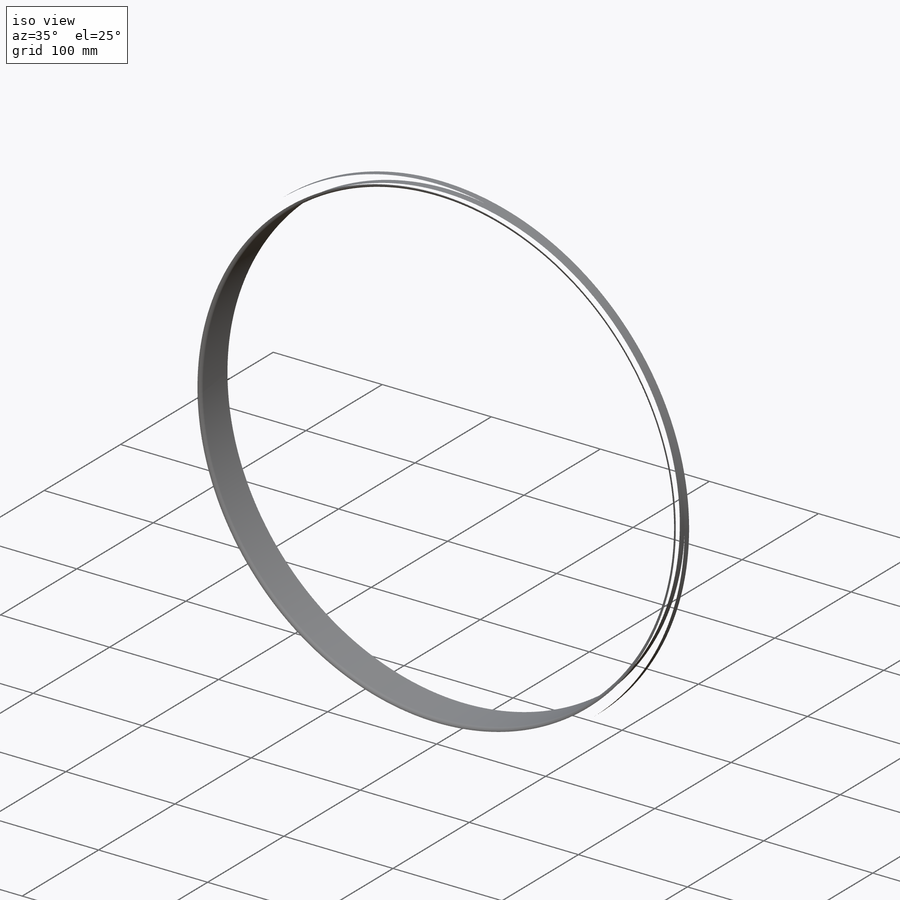
[diagram: iso view]
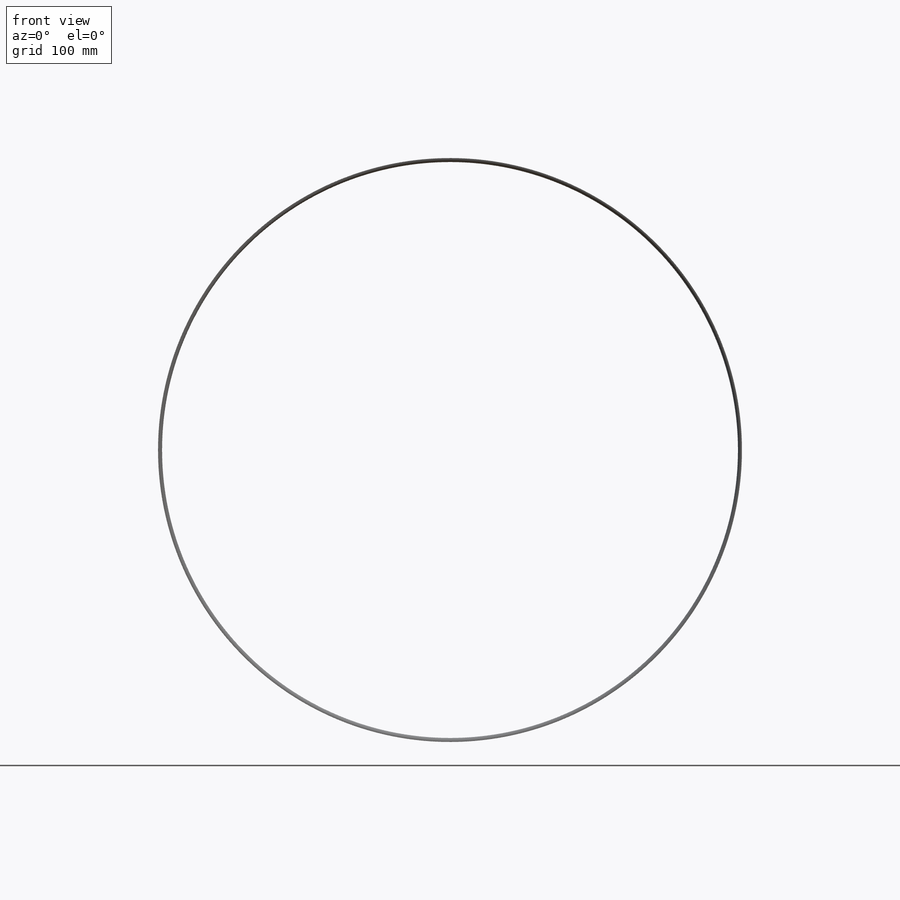
[diagram: front view]
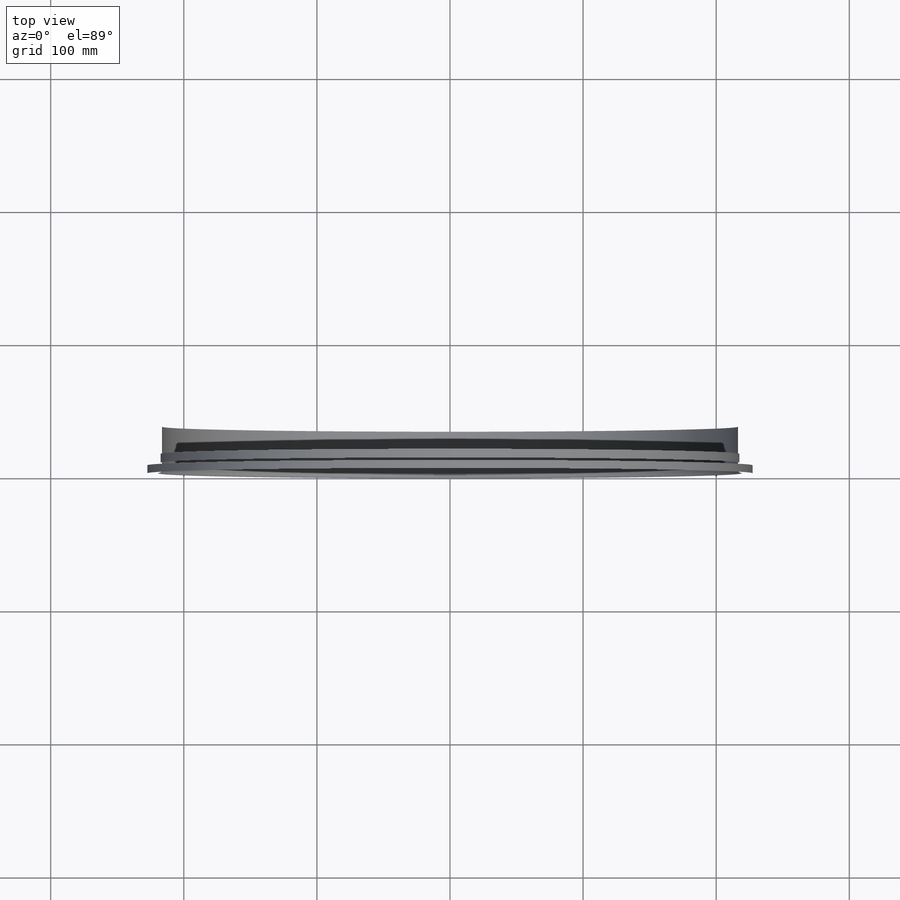
[diagram: top view]
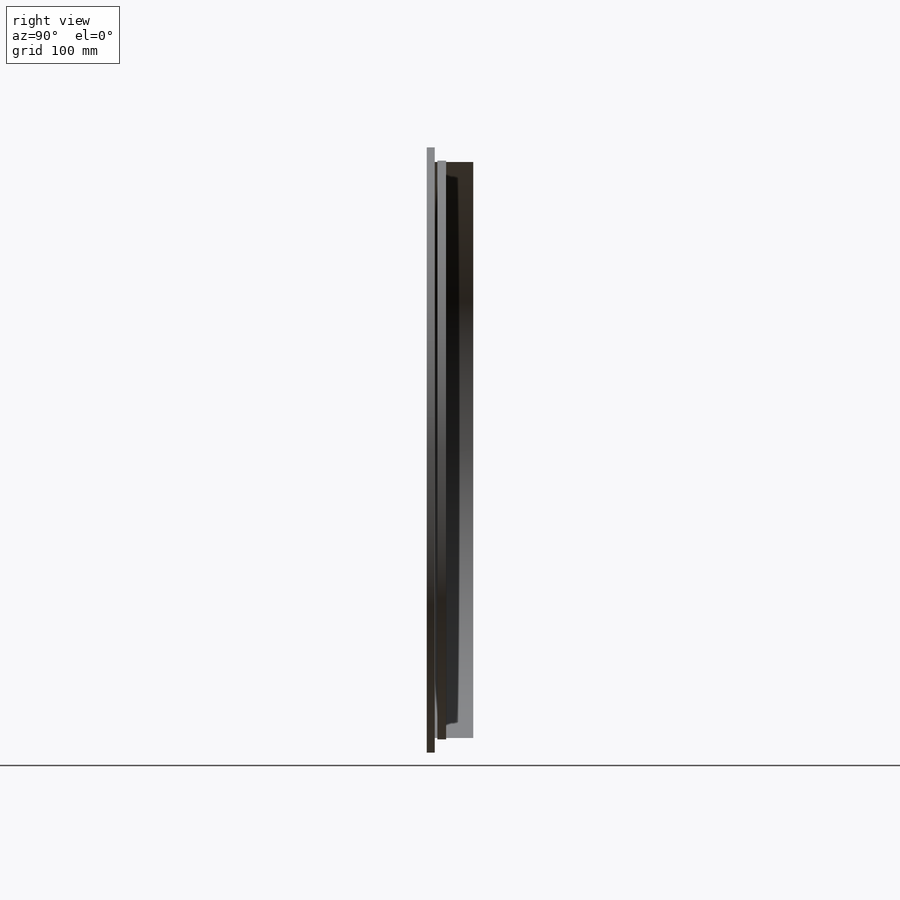
[diagram: right view]
SOLIDWORKS PART (.sldprt)
format: sldprt  version: not decoded by parser v0  size: 2,388,480 bytes
history: native  units: mm
features: sketch x9, revolve x2, material x1, sweep x1, fillet x1, cut_revolve x1, hole x1, pattern_circular x1, extrude x1 (+11 scaffold rows collapsed)
feature tree (29):
  scaffold x11  (default folders/planes/origin — collapsed)
  material  "Isotropic CFRP"
  sketch  "Sketch1"  dims[D1=432.65mm]
  sketch  "Sketch2"  dims[D5=3.0mm D6=2.0mm D1=1.1mm D2=1.065mm D3=11.0mm D4=20.0mm]
  sweep  "Sweep1"
  sketch  "Sketch7"  dims[D1=6.0mm]
  revolve  "Revolve3"  Angle=360deg
  fillet  "Fillet1"  Radius=2mm
  sketch  "Sketch8"  dims[c1.D1=0.2mm c1.D2=6.6mm c2.D1=0.213mm]
  cut_revolve  "Cut-Revolve1"  Angle=360deg
  hole  "M4 Clearance Hole1"  Diameter=4.5mm Depth=20mm
  sketch  "Sketch4"  dims[D1=222.0mm]
  sketch  "Sketch5"  dims[hole-wizard template sketch: 60 standard entries collapsed; hole parameters kept: c18.Thru Hole Depth=20.0mm]
  pattern_circular  "CirPattern1"  Count=24 Angle=360deg
  sketch  "Sketch6"  dims[D1=4.0mm]
  extrude  "Boss-Extrude1"  [1 undecoded]
  sketch  "Sketch10"  dims[D1=40.0mm D2=16.0mm D3=5.0mm D4=5.0mm]
  revolve  "Revolve4"  Angle=360deg
  sketch  "tapered layup sketch"  dims[c1.D2=0.5mm c1.D3=0.5mm c1.D4=0.5mm c2.D2=0.4mm c2.D3=0.4mm c2.D4=0.4mm c2.D1=0.213mm c3.D2=0.2mm]
decode coverage: 15 of 17 modeling features carry decoded parameters
note: ~ marks probable driven/reference dimensions
note: 1 parameter value undecoded
note: suppression state not decoded; provenance and decode notes live in map.json
